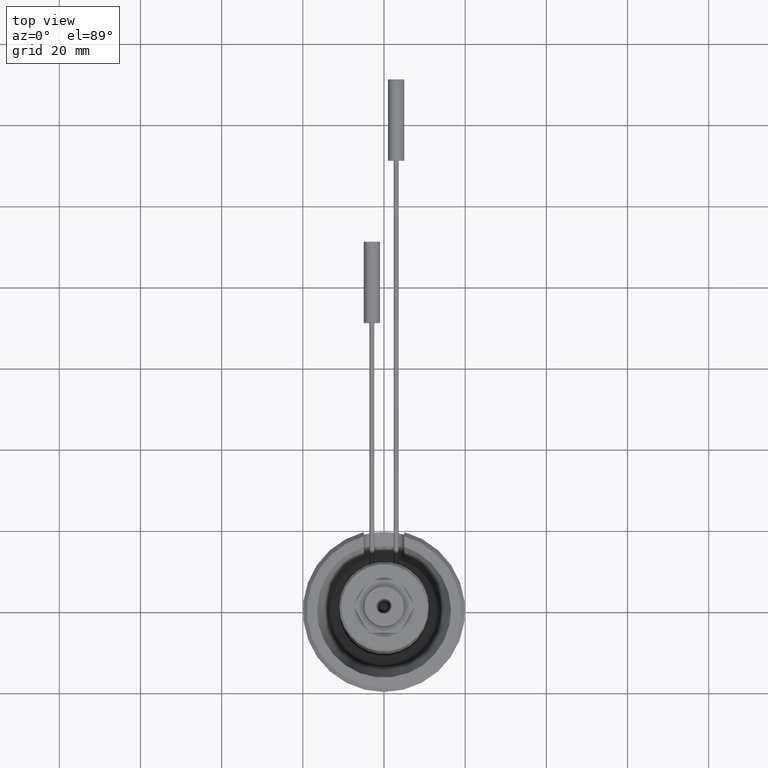
[diagram: clean part render]
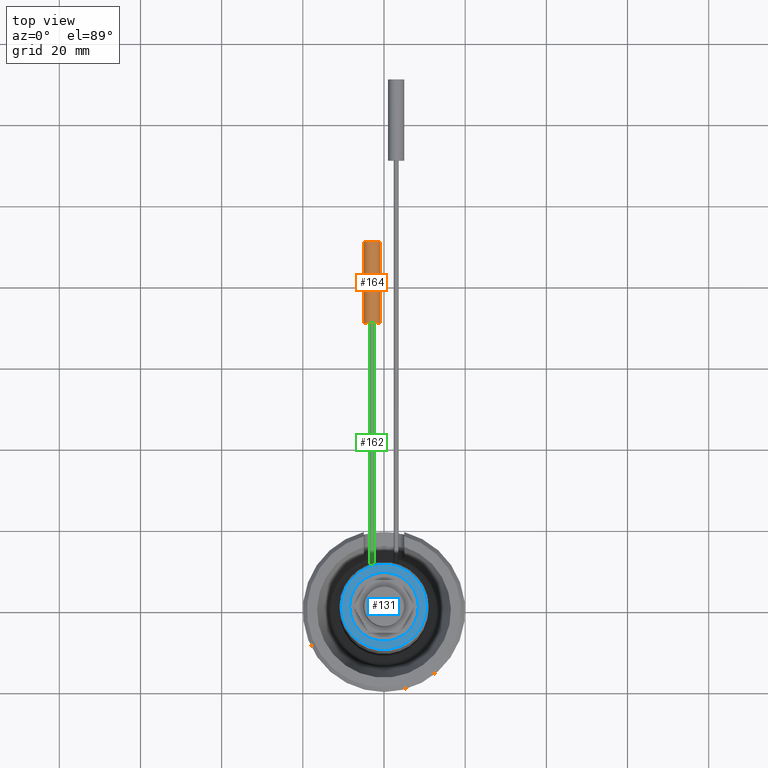
[diagram: same view with three faces highlighted in distinct colors, each labeled with its STEP entity id]
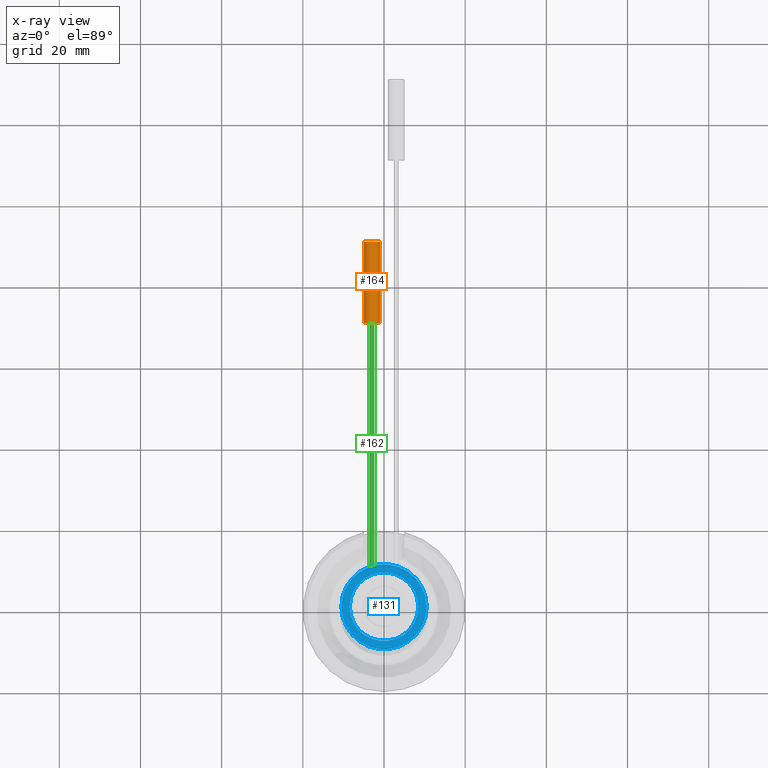
[diagram: x-ray of the same camera — body ghosted, the three highlighted faces saturated]
A machine part, top view with three faces highlighted in distinct colors.
The next image is the same camera in x-ray (body ghosted, the three faces saturated) — at least one of them is partly hidden behind the body in this view.
Their STEP definitions:

[orange] entity #164 — the highlighted cylindrical surface (bore or boss wall) has radius 2 mm, axis along (0, -1, 0).
#84=CYLINDRICAL_SURFACE('',#1045,2.);
#164=ADVANCED_FACE('',(#346,#347),#84,.T.);
#346=FACE_BOUND('',#425,.T.);
#347=FACE_BOUND('',#426,.T.);
#425=EDGE_LOOP('',(#620));
#426=EDGE_LOOP('',(#621));
#620=ORIENTED_EDGE('',*,*,#894,.F.);
#621=ORIENTED_EDGE('',*,*,#895,.T.);
#776=VERTEX_POINT('',#1812);
#777=VERTEX_POINT('',#1814);
#894=EDGE_CURVE('',#776,#776,#948,.T.);
#895=EDGE_CURVE('',#777,#777,#949,.T.);
#948=CIRCLE('',#1043,2.);
#949=CIRCLE('',#1044,2.);
#1043=AXIS2_PLACEMENT_3D('',#1811,#1296,#1297);
#1044=AXIS2_PLACEMENT_3D('',#1813,#1298,#1299);
#1045=AXIS2_PLACEMENT_3D('',#1815,#1300,#1301);
#1296=DIRECTION('',(0.,1.,0.));
#1297=DIRECTION('',(1.,0.,0.));
#1298=DIRECTION('',(0.,1.,0.));
#1299=DIRECTION('',(1.,0.,0.));
#1300=DIRECTION('',(0.,-1.,0.));
#1301=DIRECTION('',(0.,0.,-0.999999999999999));
#1811=CARTESIAN_POINT('',(-3.,91.,18.5));
#1812=CARTESIAN_POINT('',(-0.999999999999999,91.,18.5));
#1813=CARTESIAN_POINT('',(-3.,71.,18.5));
#1814=CARTESIAN_POINT('',(-0.999999999999999,71.,18.5));
#1815=CARTESIAN_POINT('',(-3.,91.,18.5));

[blue] entity #131 — the highlighted planar face has unit normal (0, 0, -1).
#131=ADVANCED_FACE('',(#310,#311),#188,.F.);
#188=PLANE('',#976);
#310=FACE_BOUND('',#373,.T.);
#311=FACE_BOUND('',#374,.T.);
#373=EDGE_LOOP('',(#493));
#374=EDGE_LOOP('',(#494));
#493=ORIENTED_EDGE('',*,*,#812,.T.);
#494=ORIENTED_EDGE('',*,*,#813,.F.);
#719=VERTEX_POINT('',#1532);
#720=VERTEX_POINT('',#1534);
#812=EDGE_CURVE('',#719,#719,#912,.T.);
#813=EDGE_CURVE('',#720,#720,#913,.T.);
#912=CIRCLE('',#974,10.5);
#913=CIRCLE('',#975,8.45);
#974=AXIS2_PLACEMENT_3D('',#1531,#1130,#1131);
#975=AXIS2_PLACEMENT_3D('',#1533,#1132,#1133);
#976=AXIS2_PLACEMENT_3D('',#1535,#1134,#1135);
#1130=DIRECTION('',(0.,0.,1.));
#1131=DIRECTION('',(-1.,0.,0.));
#1132=DIRECTION('',(0.,0.,1.));
#1133=DIRECTION('',(1.,0.,0.));
#1134=DIRECTION('',(0.,0.,-1.));
#1135=DIRECTION('',(-1.,0.,0.));
#1531=CARTESIAN_POINT('',(0.,0.,79.5));
#1532=CARTESIAN_POINT('',(-10.5,0.,79.5));
#1533=CARTESIAN_POINT('',(0.,0.,79.5));
#1534=CARTESIAN_POINT('',(8.45,0.,79.5));
#1535=CARTESIAN_POINT('',(-11.,0.,79.5));

[green] entity #162 — the highlighted cylindrical surface (bore or boss wall) has radius 0.6 mm, axis along (0, -1, 0).
#50=B_SPLINE_CURVE_WITH_KNOTS('',3,(#1412,#1413,#1414,#1415,#1416,#1417,
#1418,#1419,#1420,#1421,#1422,#1423,#1424,#1425,#1426,#1427,#1428,#1429,
#1430,#1431,#1432,#1433,#1434,#1435,#1436,#1437,#1438,#1439,#1440,#1441,
#1442,#1443,#1444,#1445,#1446,#1447,#1448,#1449,#1450,#1451,#1452,#1453,
#1454,#1455,#1456,#1457,#1458,#1459,#1460,#1461,#1462,#1463,#1464,#1465,
#1466,#1467,#1468,#1469),.UNSPECIFIED.,.T.,.F.,(1,3,3,3,3,3,3,3,3,3,3,3,
3,3,3,3,3,3,3,3,3,1),(-0.0334760659607021,0.,0.0569276184208162,0.11388798171723,
0.170189178404947,0.223994773815214,0.275023318518955,0.32479447673683,
0.375435942673917,0.428444094596675,0.484019015101014,0.541000746772207,
0.597629402742916,0.652691800182208,0.705997861087888,0.758026453272304,
0.809447894307852,0.860920961920237,0.913080990616137,0.966523934039298,
1.,1.05692761842082),.UNSPECIFIED.);
#82=CYLINDRICAL_SURFACE('',#1040,0.6);
#162=ADVANCED_FACE('',(#342,#343),#82,.T.);
#342=FACE_BOUND('',#421,.T.);
#343=FACE_BOUND('',#422,.T.);
#421=EDGE_LOOP('',(#616));
#422=EDGE_LOOP('',(#617));
#616=ORIENTED_EDGE('',*,*,#892,.F.);
#617=ORIENTED_EDGE('',*,*,#810,.T.);
#717=VERTEX_POINT('',#1470);
#774=VERTEX_POINT('',#1806);
#810=EDGE_CURVE('',#717,#717,#50,.T.);
#892=EDGE_CURVE('',#774,#774,#946,.T.);
#946=CIRCLE('',#1039,0.6);
#1039=AXIS2_PLACEMENT_3D('',#1805,#1288,#1289);
#1040=AXIS2_PLACEMENT_3D('',#1807,#1290,#1291);
#1288=DIRECTION('',(0.,1.,0.));
#1289=DIRECTION('',(1.,0.,0.));
#1290=DIRECTION('',(0.,-1.,0.));
#1291=DIRECTION('',(0.,0.,-1.));
#1412=CARTESIAN_POINT('',(-2.99999999999991,10.5830052442584,17.8999999999996));
#1413=CARTESIAN_POINT('',(-3.06981681712979,10.5632140368882,17.8999999999996));
#1414=CARTESIAN_POINT('',(-3.14038450659972,10.5424227737473,17.9124970988472));
#1415=CARTESIAN_POINT('',(-3.20591448775793,10.5224575217571,17.9364405765748));
#1416=CARTESIAN_POINT('',(-3.27146261720385,10.5024867404637,17.9603906853607));
#1417=CARTESIAN_POINT('',(-3.33382981085157,10.4827847092571,17.9964888354275));
#1418=CARTESIAN_POINT('',(-3.3876192775582,10.4653731720525,18.0420138695711));
#1419=CARTESIAN_POINT('',(-3.44075567997196,10.4481730303855,18.0869861788774));
#1420=CARTESIAN_POINT('',(-3.48705359081985,10.43272799059,18.1425344552966));
#1421=CARTESIAN_POINT('',(-3.5219399223933,10.4209375385832,18.2040629840455));
#1422=CARTESIAN_POINT('',(-3.55529059017035,10.4096660912832,18.262883084313));
#1423=CARTESIAN_POINT('',(-3.57915482046363,10.4014329403698,18.3289382027011));
#1424=CARTESIAN_POINT('',(-3.59097724228668,10.39734977989,18.3963375714194));
#1425=CARTESIAN_POINT('',(-3.60220237963041,10.39347290611,18.4603318343604));
#1426=CARTESIAN_POINT('',(-3.60289005001189,10.3932330618097,18.5273519849324));
#1427=CARTESIAN_POINT('',(-3.59296868398482,10.396661773661,18.5915867884212));
#1428=CARTESIAN_POINT('',(-3.58328137018419,10.4000095997109,18.6543062462681));
#1429=CARTESIAN_POINT('',(-3.56326033680526,10.4069246310301,18.716062895263));
#1430=CARTESIAN_POINT('',(-3.53478046430455,10.4165890323642,18.7720475234187));
#1431=CARTESIAN_POINT('',(-3.5057920601981,10.4264259995527,18.8290318032705));
#1432=CARTESIAN_POINT('',(-3.46732907570817,10.4393411650476,18.8815408372879));
#1433=CARTESIAN_POINT('',(-3.42260264746866,10.453984461321,18.9259190091467));
#1434=CARTESIAN_POINT('',(-3.37580324197967,10.4693064440271,18.9723540172935));
#1435=CARTESIAN_POINT('',(-3.32095149567916,10.4868989700489,19.0111162295878));
#1436=CARTESIAN_POINT('',(-3.26232257871943,10.5051059676891,19.0396173317213));
#1437=CARTESIAN_POINT('',(-3.20090536269367,10.524178861497,19.0694739014394));
#1438=CARTESIAN_POINT('',(-3.1336983167243,10.5444253513799,19.088868258931));
#1439=CARTESIAN_POINT('',(-3.06598618430007,10.564077277154,19.0963604811534));
#1440=CARTESIAN_POINT('',(-2.99661772046592,10.5842099159223,19.1040359733831));
#1441=CARTESIAN_POINT('',(-2.92478068762943,10.6042751642352,19.0994009585023));
#1442=CARTESIAN_POINT('',(-2.85653800704422,10.622626352005,19.0825964783426));
#1443=CARTESIAN_POINT('',(-2.78874380432905,10.6408569392719,19.0659024340187));
#1444=CARTESIAN_POINT('',(-2.72256330115455,10.6579214838166,19.0366771898524));
#1445=CARTESIAN_POINT('',(-2.66401663073763,10.6725355652325,18.9971068050018));
#1446=CARTESIAN_POINT('',(-2.60707805025483,10.6867482445354,18.9586232921649));
#1447=CARTESIAN_POINT('',(-2.55573615457011,10.6990643438209,18.9092216508164));
#1448=CARTESIAN_POINT('',(-2.51483547133773,10.7086695042896,18.8530090368927));
#1449=CARTESIAN_POINT('',(-2.47521965706406,10.7179729247492,18.798562306495));
#1450=CARTESIAN_POINT('',(-2.44427888225215,10.725012553923,18.7361680065076));
#1451=CARTESIAN_POINT('',(-2.42492917387903,10.7293857467084,18.6711535712293));
#1452=CARTESIAN_POINT('',(-2.40603383409633,10.733656248466,18.6076658006813));
#1453=CARTESIAN_POINT('',(-2.39766002012662,10.7355128144675,18.5399010011442));
#1454=CARTESIAN_POINT('',(-2.40058147454186,10.7348595046273,18.4735910746605));
#1455=CARTESIAN_POINT('',(-2.40346989220308,10.7342135826266,18.4080310023314));
#1456=CARTESIAN_POINT('',(-2.41746976120564,10.7310967887802,18.3420888473413));
#1457=CARTESIAN_POINT('',(-2.44132064172829,10.725667975668,18.2811910087746));
#1458=CARTESIAN_POINT('',(-2.46520089217958,10.7202324775258,18.2202181807259));
#1459=CARTESIAN_POINT('',(-2.49958709380877,10.712325527574,18.162649352121));
#1460=CARTESIAN_POINT('',(-2.5414784747202,10.7023776406242,18.1130141981221));
#1461=CARTESIAN_POINT('',(-2.58393260100764,10.6922961193263,18.0627122732317));
#1462=CARTESIAN_POINT('',(-2.63520668837192,10.6798406558194,18.0192069291159));
#1463=CARTESIAN_POINT('',(-2.69099725920307,10.6657645647633,17.9856875403221));
#1464=CARTESIAN_POINT('',(-2.74815439445356,10.6513436863191,17.9513471094883));
#1465=CARTESIAN_POINT('',(-2.81154660528336,10.63483306504,17.9265595067595));
#1466=CARTESIAN_POINT('',(-2.87606909114748,10.6173549711284,17.912938563836));
#1467=CARTESIAN_POINT('',(-2.9168172067377,10.6063169681522,17.9043364811781));
#1468=CARTESIAN_POINT('',(-2.95854912963758,10.5947554615376,17.9));
#1469=CARTESIAN_POINT('',(-2.99999999999991,10.5830052442584,17.8999999999996));
#1470=CARTESIAN_POINT('',(-2.99999999999991,10.5830052442584,17.8999999999996));
#1805=CARTESIAN_POINT('',(-3.,71.,18.5));
#1806=CARTESIAN_POINT('',(-2.4,71.,18.5));
#1807=CARTESIAN_POINT('',(-3.,71.,18.5));